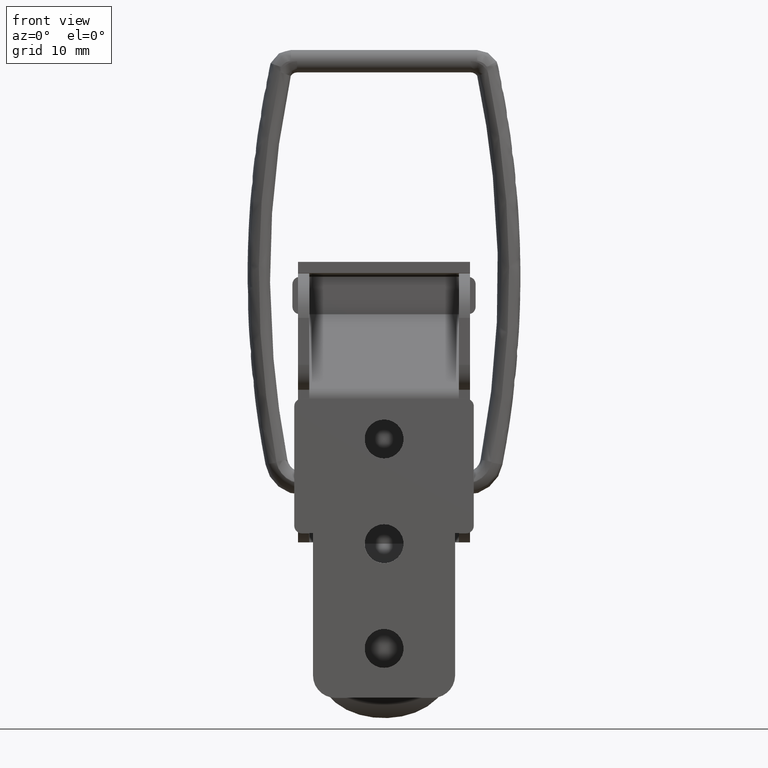
[diagram: clean part render]
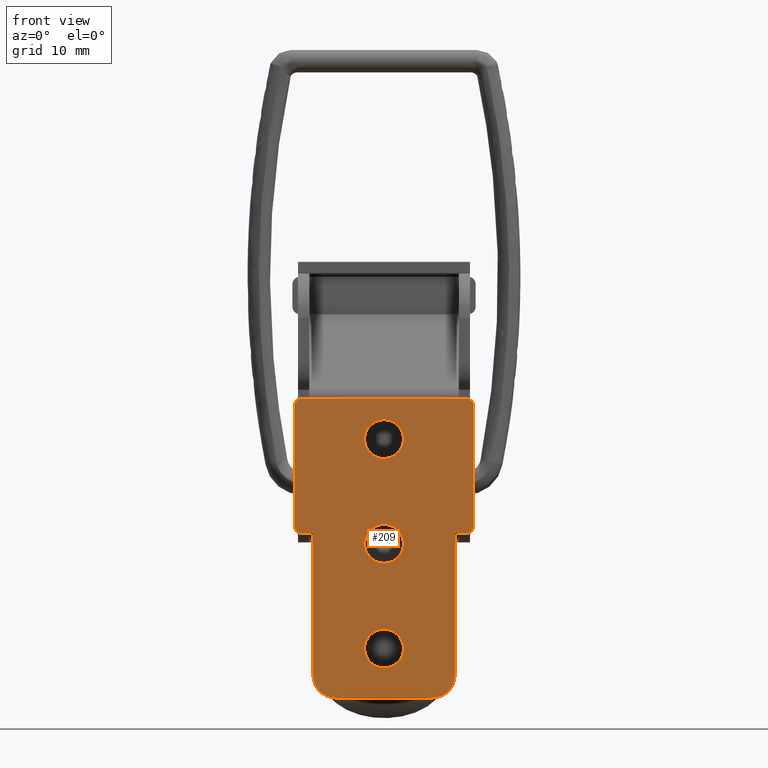
[diagram: same view with one face highlighted and labeled with its STEP entity id]
A machine part, front view. The second image highlights one B-rep face of the part: STEP entity #209.
In plain terms, the highlighted planar face has unit normal (0, -1, 0).
Its self-contained STEP definition (entity closure, byte-faithful):
#209=ADVANCED_FACE('',(#873,#874,#875,#876),#872,.T.);
#872=PLANE('',#2045);
#873=FACE_OUTER_BOUND('',#2046,.T.);
#874=FACE_BOUND('',#2047,.T.);
#875=FACE_BOUND('',#2048,.T.);
#876=FACE_BOUND('',#2049,.T.);
#2042=CARTESIAN_POINT('',(-2.66500000000E+01,0.00000000000E+00,9.35634292507E+00));
#2043=DIRECTION('',(0.00000000000E+00,-1.00000000000E+00,-0.00000000000E+00));
#2044=DIRECTION('',(0.00000000000E+00,0.00000000000E+00,-1.00000000000E+00));
#2045=AXIS2_PLACEMENT_3D('',#2042,#2043,#2044);
#2046=EDGE_LOOP('',(#2660,#2661,#2662,#2663,#2664,#2665,#2666,#2667,#2668,#2669,#2670,#2671,#2672,#2673));
#2047=EDGE_LOOP('',(#2674,#2675));
#2048=EDGE_LOOP('',(#2676,#2677));
#2049=EDGE_LOOP('',(#2678,#2679));
#2660=ORIENTED_EDGE('',*,*,#3178,.T.);
#2661=ORIENTED_EDGE('',*,*,#3091,.T.);
#2662=ORIENTED_EDGE('',*,*,#3179,.F.);
#2663=ORIENTED_EDGE('',*,*,#3180,.F.);
#2664=ORIENTED_EDGE('',*,*,#3141,.T.);
#2665=ORIENTED_EDGE('',*,*,#3170,.T.);
#2666=ORIENTED_EDGE('',*,*,#3136,.T.);
#2667=ORIENTED_EDGE('',*,*,#3103,.F.);
#2668=ORIENTED_EDGE('',*,*,#3090,.T.);
#2669=ORIENTED_EDGE('',*,*,#3181,.F.);
#2670=ORIENTED_EDGE('',*,*,#3145,.T.);
#2671=ORIENTED_EDGE('',*,*,#3182,.T.);
#2672=ORIENTED_EDGE('',*,*,#3167,.T.);
#2673=ORIENTED_EDGE('',*,*,#3095,.T.);
#2674=ORIENTED_EDGE('',*,*,#3183,.F.);
#2675=ORIENTED_EDGE('',*,*,#3184,.F.);
#2676=ORIENTED_EDGE('',*,*,#3185,.F.);
#2677=ORIENTED_EDGE('',*,*,#3186,.F.);
#2678=ORIENTED_EDGE('',*,*,#3187,.F.);
#2679=ORIENTED_EDGE('',*,*,#3188,.F.);
#3090=EDGE_CURVE('',#3883,#3911,#3918,.T.);
#3091=EDGE_CURVE('',#3924,#3925,#3926,.T.);
#3095=EDGE_CURVE('',#3952,#3953,#3954,.T.);
#3103=EDGE_CURVE('',#3883,#4008,#4009,.T.);
#3136=EDGE_CURVE('',#4228,#4008,#4229,.T.);
#3141=EDGE_CURVE('',#4262,#4263,#4264,.T.);
#3145=EDGE_CURVE('',#4290,#4291,#4292,.T.);
#3167=EDGE_CURVE('',#4437,#3952,#4438,.T.);
#3170=EDGE_CURVE('',#4263,#4228,#4456,.T.);
#3178=EDGE_CURVE('',#3953,#3924,#4508,.T.);
#3179=EDGE_CURVE('',#4514,#3925,#4515,.T.);
#3180=EDGE_CURVE('',#4262,#4514,#4521,.T.);
#3181=EDGE_CURVE('',#4290,#3911,#4527,.T.);
#3182=EDGE_CURVE('',#4291,#4437,#4533,.T.);
#3183=EDGE_CURVE('',#4539,#4540,#4541,.T.);
#3184=EDGE_CURVE('',#4540,#4539,#4547,.T.);
#3185=EDGE_CURVE('',#4553,#4554,#4555,.T.);
#3186=EDGE_CURVE('',#4554,#4553,#4561,.T.);
#3187=EDGE_CURVE('',#4567,#4568,#4569,.T.);
#3188=EDGE_CURVE('',#4568,#4567,#4575,.T.);
#3883=VERTEX_POINT('',#5921);
#3911=VERTEX_POINT('',#5939);
#3918=CIRCLE('',#5946,1.00000000000E+00);
#3924=VERTEX_POINT('',#5947);
#3925=VERTEX_POINT('',#5948);
#3926=CIRCLE('',#5952,3.00000000000E+00);
#3952=VERTEX_POINT('',#5965);
#3953=VERTEX_POINT('',#5966);
#3954=CIRCLE('',#5970,3.00000000000E+00);
#4008=VERTEX_POINT('',#5999);
#4009=LINE('',#6000,#6001);
#4228=VERTEX_POINT('',#6131);
#4229=CIRCLE('',#6135,1.00000000000E+00);
#4262=VERTEX_POINT('',#6152);
#4263=VERTEX_POINT('',#6153);
#4264=CIRCLE('',#6157,1.00000000000E+00);
#4290=VERTEX_POINT('',#6170);
#4291=VERTEX_POINT('',#6171);
#4292=CIRCLE('',#6175,1.00000000000E+00);
#4437=VERTEX_POINT('',#6262);
#4438=LINE('',#6263,#6264);
#4456=LINE('',#6272,#6273);
#4508=LINE('',#6302,#6303);
#4514=VERTEX_POINT('',#6305);
#4515=LINE('',#6306,#6307);
#4521=LINE('',#6309,#6310);
#4527=LINE('',#6312,#6313);
#4533=LINE('',#6315,#6316);
#4539=VERTEX_POINT('',#6318);
#4540=VERTEX_POINT('',#6319);
#4541=CIRCLE('',#6323,2.60000000000E+00);
#4547=CIRCLE('',#6327,2.60000000000E+00);
#4553=VERTEX_POINT('',#6328);
#4554=VERTEX_POINT('',#6329);
#4555=CIRCLE('',#6333,2.60000000000E+00);
#4561=CIRCLE('',#6337,2.60000000000E+00);
#4567=VERTEX_POINT('',#6338);
#4568=VERTEX_POINT('',#6339);
#4569=CIRCLE('',#6343,2.60000000000E+00);
#4575=CIRCLE('',#6347,2.60000000000E+00);
#5921=CARTESIAN_POINT('',(-2.35289289205E+01,0.00000000000E+00,5.36031175007E+00));
#5939=CARTESIAN_POINT('',(-2.42500000000E+01,0.00000000000E+00,4.40000000000E+00));
#5943=CARTESIAN_POINT('',(-2.32500000000E+01,0.00000000000E+00,4.40000000000E+00));
#5944=DIRECTION('',(0.00000000000E+00,-1.00000000000E+00,-0.00000000000E+00));
#5945=DIRECTION('',(-0.00000000000E+00,-0.00000000000E+00,1.00000000000E+00));
#5946=AXIS2_PLACEMENT_3D('',#5943,#5944,#5945);
#5947=CARTESIAN_POINT('',(-5.75000000000E+00,0.00000000000E+00,-3.46000000000E+01));
#5948=CARTESIAN_POINT('',(-2.75000000000E+00,0.00000000000E+00,-3.16000000000E+01));
#5949=CARTESIAN_POINT('',(-5.75000000000E+00,0.00000000000E+00,-3.16000000000E+01));
#5950=DIRECTION('',(0.00000000000E+00,-1.00000000000E+00,-0.00000000000E+00));
#5951=DIRECTION('',(-0.00000000000E+00,-0.00000000000E+00,1.00000000000E+00));
#5952=AXIS2_PLACEMENT_3D('',#5949,#5950,#5951);
#5965=CARTESIAN_POINT('',(-2.17500000000E+01,0.00000000000E+00,-3.16000000000E+01));
#5966=CARTESIAN_POINT('',(-1.87500000000E+01,0.00000000000E+00,-3.46000000000E+01));
#5967=CARTESIAN_POINT('',(-1.87500000000E+01,0.00000000000E+00,-3.16000000000E+01));
#5968=DIRECTION('',(0.00000000000E+00,-1.00000000000E+00,-0.00000000000E+00));
#5969=DIRECTION('',(-0.00000000000E+00,-0.00000000000E+00,1.00000000000E+00));
#5970=AXIS2_PLACEMENT_3D('',#5967,#5968,#5969);
#5999=CARTESIAN_POINT('',(-9.71071079515E-01,0.00000000000E+00,5.36031175007E+00));
#6000=CARTESIAN_POINT('',(-2.35289289205E+01,0.00000000000E+00,5.36031175007E+00));
#6001=VECTOR('',#6002,2.25578578410E+01);
#6002=DIRECTION('',(1.00000000000E+00,0.00000000000E+00,0.00000000000E+00));
#6131=CARTESIAN_POINT('',(-2.50000000000E-01,0.00000000000E+00,4.40000000000E+00));
#6132=CARTESIAN_POINT('',(-1.25000000000E+00,0.00000000000E+00,4.40000000000E+00));
#6133=DIRECTION('',(0.00000000000E+00,-1.00000000000E+00,-0.00000000000E+00));
#6134=DIRECTION('',(-0.00000000000E+00,-0.00000000000E+00,1.00000000000E+00));
#6135=AXIS2_PLACEMENT_3D('',#6132,#6133,#6134);
#6152=CARTESIAN_POINT('',(-1.25000000000E+00,0.00000000000E+00,-1.26000000000E+01));
#6153=CARTESIAN_POINT('',(-2.50000000000E-01,0.00000000000E+00,-1.16000000000E+01));
#6154=CARTESIAN_POINT('',(-1.25000000000E+00,0.00000000000E+00,-1.16000000000E+01));
#6155=DIRECTION('',(0.00000000000E+00,-1.00000000000E+00,-0.00000000000E+00));
#6156=DIRECTION('',(-0.00000000000E+00,-0.00000000000E+00,1.00000000000E+00));
#6157=AXIS2_PLACEMENT_3D('',#6154,#6155,#6156);
#6170=CARTESIAN_POINT('',(-2.42500000000E+01,0.00000000000E+00,-1.16000000000E+01));
#6171=CARTESIAN_POINT('',(-2.32500000000E+01,0.00000000000E+00,-1.26000000000E+01));
#6172=CARTESIAN_POINT('',(-2.32500000000E+01,0.00000000000E+00,-1.16000000000E+01));
#6173=DIRECTION('',(0.00000000000E+00,-1.00000000000E+00,-0.00000000000E+00));
#6174=DIRECTION('',(-0.00000000000E+00,-0.00000000000E+00,1.00000000000E+00));
#6175=AXIS2_PLACEMENT_3D('',#6172,#6173,#6174);
#6262=CARTESIAN_POINT('',(-2.17500000000E+01,0.00000000000E+00,-1.26000000000E+01));
#6263=CARTESIAN_POINT('',(-2.17500000000E+01,0.00000000000E+00,-1.26000000000E+01));
#6264=VECTOR('',#6265,1.90000000000E+01);
#6265=DIRECTION('',(0.00000000000E+00,0.00000000000E+00,-1.00000000000E+00));
#6272=CARTESIAN_POINT('',(-2.50000000000E-01,0.00000000000E+00,-1.16000000000E+01));
#6273=VECTOR('',#6274,1.60000000000E+01);
#6274=DIRECTION('',(0.00000000000E+00,0.00000000000E+00,1.00000000000E+00));
#6302=CARTESIAN_POINT('',(-1.87500000000E+01,0.00000000000E+00,-3.46000000000E+01));
#6303=VECTOR('',#6304,1.30000000000E+01);
#6304=DIRECTION('',(1.00000000000E+00,0.00000000000E+00,0.00000000000E+00));
#6305=CARTESIAN_POINT('',(-2.75000000000E+00,0.00000000000E+00,-1.26000000000E+01));
#6306=CARTESIAN_POINT('',(-2.75000000000E+00,0.00000000000E+00,-1.26000000000E+01));
#6307=VECTOR('',#6308,1.90000000000E+01);
#6308=DIRECTION('',(0.00000000000E+00,0.00000000000E+00,-1.00000000000E+00));
#6309=CARTESIAN_POINT('',(-1.25000000000E+00,0.00000000000E+00,-1.26000000000E+01));
#6310=VECTOR('',#6311,1.50000000000E+00);
#6311=DIRECTION('',(-1.00000000000E+00,0.00000000000E+00,0.00000000000E+00));
#6312=CARTESIAN_POINT('',(-2.42500000000E+01,0.00000000000E+00,-1.16000000000E+01));
#6313=VECTOR('',#6314,1.60000000000E+01);
#6314=DIRECTION('',(0.00000000000E+00,0.00000000000E+00,1.00000000000E+00));
#6315=CARTESIAN_POINT('',(-2.32500000000E+01,0.00000000000E+00,-1.26000000000E+01));
#6316=VECTOR('',#6317,1.50000000000E+00);
#6317=DIRECTION('',(1.00000000000E+00,0.00000000000E+00,0.00000000000E+00));
#6318=CARTESIAN_POINT('',(-1.22500000000E+01,0.00000000000E+00,-1.14000000000E+01));
#6319=CARTESIAN_POINT('',(-1.22500000000E+01,0.00000000000E+00,-1.66000000000E+01));
#6320=CARTESIAN_POINT('',(-1.22500000000E+01,0.00000000000E+00,-1.40000000000E+01));
#6321=DIRECTION('',(0.00000000000E+00,-1.00000000000E+00,-0.00000000000E+00));
#6322=DIRECTION('',(-1.22460635382E-16,0.00000000000E+00,-1.00000000000E+00));
#6323=AXIS2_PLACEMENT_3D('',#6320,#6321,#6322);
#6324=CARTESIAN_POINT('',(-1.22500000000E+01,0.00000000000E+00,-1.40000000000E+01));
#6325=DIRECTION('',(0.00000000000E+00,-1.00000000000E+00,-0.00000000000E+00));
#6326=DIRECTION('',(-1.22460635382E-16,0.00000000000E+00,-1.00000000000E+00));
#6327=AXIS2_PLACEMENT_3D('',#6324,#6325,#6326);
#6328=CARTESIAN_POINT('',(-1.22500000000E+01,0.00000000000E+00,-2.54000000000E+01));
#6329=CARTESIAN_POINT('',(-1.22500000000E+01,0.00000000000E+00,-3.06000000000E+01));
#6330=CARTESIAN_POINT('',(-1.22500000000E+01,0.00000000000E+00,-2.80000000000E+01));
#6331=DIRECTION('',(0.00000000000E+00,-1.00000000000E+00,-0.00000000000E+00));
#6332=DIRECTION('',(-1.22460635382E-16,0.00000000000E+00,-1.00000000000E+00));
#6333=AXIS2_PLACEMENT_3D('',#6330,#6331,#6332);
#6334=CARTESIAN_POINT('',(-1.22500000000E+01,0.00000000000E+00,-2.80000000000E+01));
#6335=DIRECTION('',(0.00000000000E+00,-1.00000000000E+00,-0.00000000000E+00));
#6336=DIRECTION('',(-1.22460635382E-16,0.00000000000E+00,-1.00000000000E+00));
#6337=AXIS2_PLACEMENT_3D('',#6334,#6335,#6336);
#6338=CARTESIAN_POINT('',(-1.22500000000E+01,0.00000000000E+00,2.60000000000E+00));
#6339=CARTESIAN_POINT('',(-1.22500000000E+01,0.00000000000E+00,-2.60000000000E+00));
#6340=CARTESIAN_POINT('',(-1.22500000000E+01,0.00000000000E+00,7.81597009336E-14));
#6341=DIRECTION('',(0.00000000000E+00,-1.00000000000E+00,-0.00000000000E+00));
#6342=DIRECTION('',(-1.22460635382E-16,0.00000000000E+00,-1.00000000000E+00));
#6343=AXIS2_PLACEMENT_3D('',#6340,#6341,#6342);
#6344=CARTESIAN_POINT('',(-1.22500000000E+01,0.00000000000E+00,7.81597009336E-14));
#6345=DIRECTION('',(0.00000000000E+00,-1.00000000000E+00,-0.00000000000E+00));
#6346=DIRECTION('',(-1.22460635382E-16,0.00000000000E+00,-1.00000000000E+00));
#6347=AXIS2_PLACEMENT_3D('',#6344,#6345,#6346);